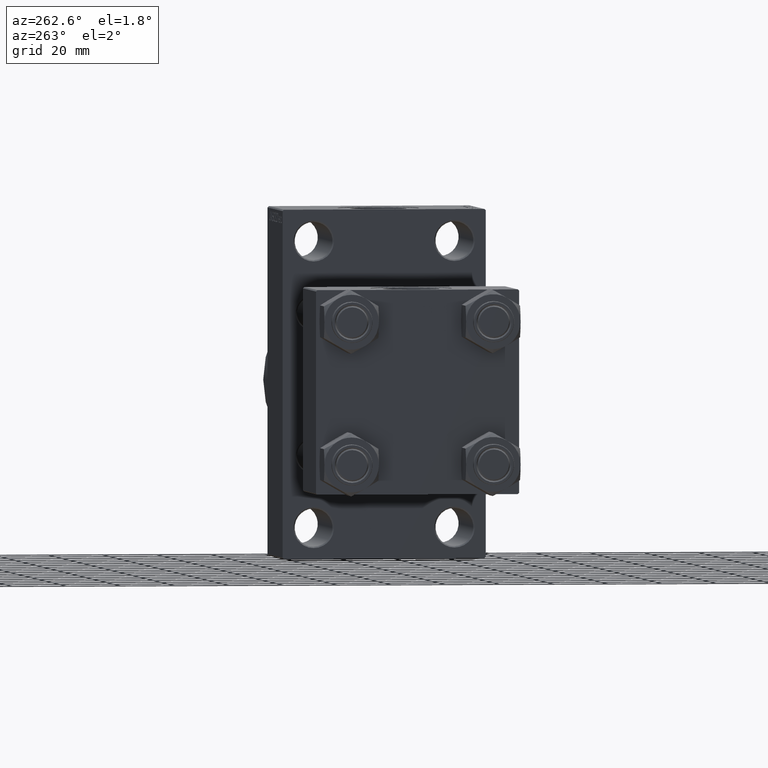
[diagram: clean part render]
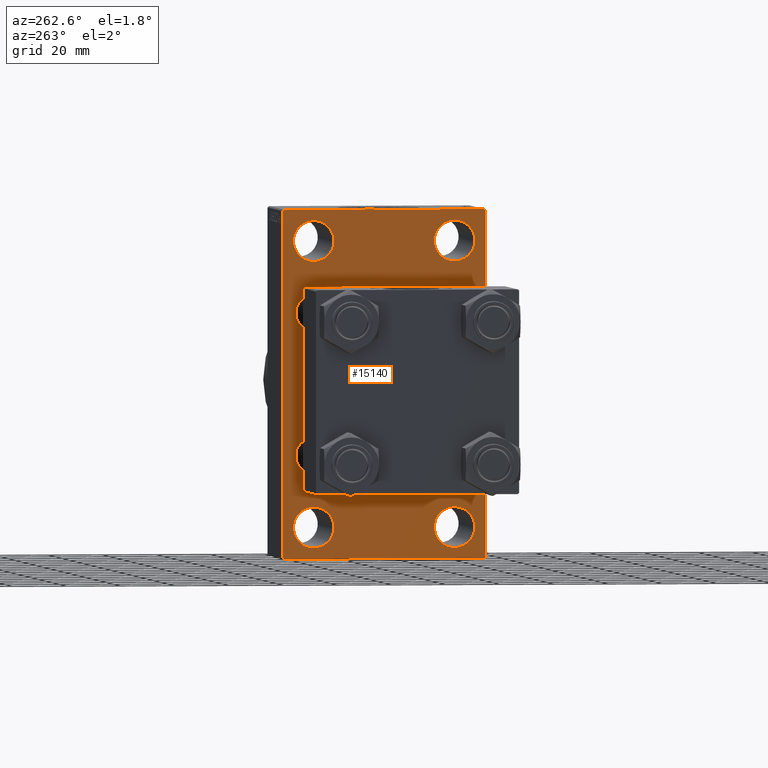
[diagram: same view with one face highlighted and labeled with its STEP entity id]
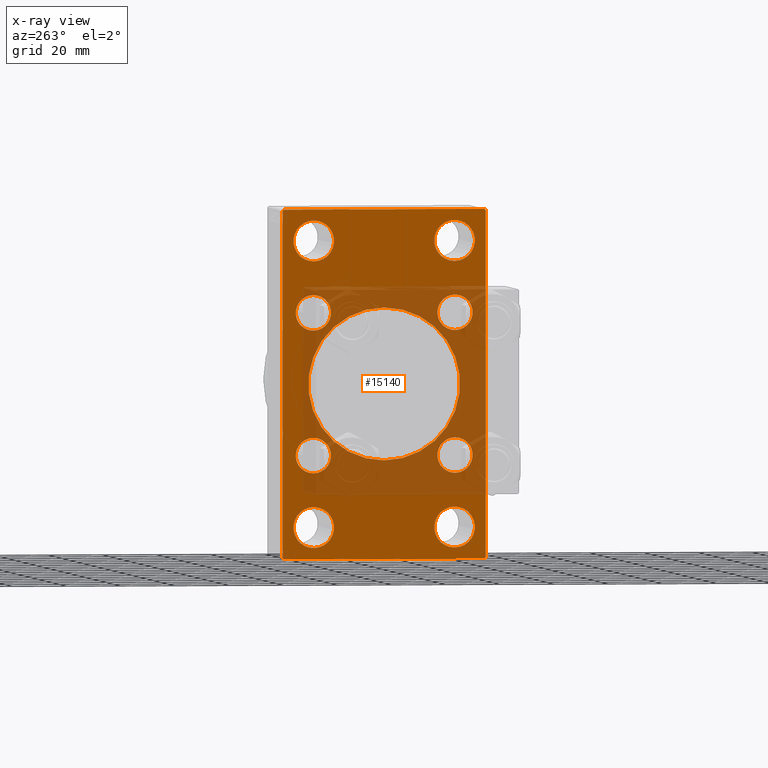
[diagram: x-ray of the same camera — body ghosted, the highlighted face saturated]
A machine part, auxiliary view. The second image highlights one B-rep face of the part: STEP entity #15140.
The next image is the same camera in x-ray: the body ghosted, the highlighted face saturated — about 37% of this face is hidden behind the body in this view.
In plain terms, the highlighted planar face has unit normal (-1, 0, 0).
Its self-contained STEP definition (entity closure, byte-faithful):
#405 = CIRCLE ( 'NONE', #30410, 7.499999999999978684 ) ;
#412 = CARTESIAN_POINT ( 'NONE',  ( 95.00000000000000000, -26.14999999999999147, 32.65000000000001990 ) ) ;
#656 = LINE ( 'NONE', #37533, #44914 ) ;
#804 = ORIENTED_EDGE ( 'NONE', *, *, #34906, .T. ) ;
#851 = AXIS2_PLACEMENT_3D ( 'NONE', #28614, #29332, #17283 ) ;
#1414 = CARTESIAN_POINT ( 'NONE',  ( 95.00000000000000000, 26.00000000000000000, -59.99999999999997158 ) ) ;
#1708 = DIRECTION ( 'NONE',  ( 0.000000000000000000, 0.000000000000000000, 1.000000000000000000 ) ) ;
#1778 = AXIS2_PLACEMENT_3D ( 'NONE', #2606, #39718, #20689 ) ;
#1925 = ORIENTED_EDGE ( 'NONE', *, *, #25820, .T. ) ;
#2372 = VERTEX_POINT ( 'NONE', #42516 ) ;
#2606 = CARTESIAN_POINT ( 'NONE',  ( 95.00000000000000000, 26.00000000000000000, -52.49999999999999289 ) ) ;
#2651 = LINE ( 'NONE', #13960, #25142 ) ;
#2870 = ORIENTED_EDGE ( 'NONE', *, *, #42293, .T. ) ;
#2890 = DIRECTION ( 'NONE',  ( 0.000000000000000000, 0.000000000000000000, -1.000000000000000000 ) ) ;
#3134 = ORIENTED_EDGE ( 'NONE', *, *, #23340, .T. ) ;
#3282 = EDGE_LOOP ( 'NONE', ( #33728, #2870 ) ) ;
#3340 = AXIS2_PLACEMENT_3D ( 'NONE', #6244, #38313, #45536 ) ;
#3359 = CARTESIAN_POINT ( 'NONE',  ( 95.00000000000000000, 50.49999999999894840, 50.50000000000176215 ) ) ;
#3522 = EDGE_CURVE ( 'NONE', #2372, #36723, #26153, .T. ) ;
#3563 = EDGE_CURVE ( 'NONE', #36723, #2372, #20786, .T. ) ;
#4019 = CARTESIAN_POINT ( 'NONE',  ( 95.00000000000000000, 26.00000000000000000, 52.49999999999999289 ) ) ;
#4088 = DIRECTION ( 'NONE',  ( 1.000000000000000000, -0.000000000000000000, 0.000000000000000000 ) ) ;
#4905 = CARTESIAN_POINT ( 'NONE',  ( 95.00000000000000000, -25.99999999999999645, -45.00000000000001421 ) ) ;
#4916 = EDGE_CURVE ( 'NONE', #9175, #9231, #31248, .T. ) ;
#4999 = CIRCLE ( 'NONE', #28067, 6.500000000000008882 ) ;
#5218 = DIRECTION ( 'NONE',  ( 1.000000000000000000, -0.000000000000000000, 0.000000000000000000 ) ) ;
#5431 = ORIENTED_EDGE ( 'NONE', *, *, #16821, .T. ) ;
#5591 = CIRCLE ( 'NONE', #7133, 6.500000000000008882 ) ;
#5705 = CARTESIAN_POINT ( 'NONE',  ( 95.00000000000000000, 50.49999999999948841, -50.50000000000088107 ) ) ;
#6103 = ORIENTED_EDGE ( 'NONE', *, *, #22804, .T. ) ;
#6244 = CARTESIAN_POINT ( 'NONE',  ( 95.00000000000000000, 0.000000000000000000, 0.000000000000000000 ) ) ;
#6462 = CARTESIAN_POINT ( 'NONE',  ( 95.00000000000000000, -26.14999999999999147, 19.65000000000000213 ) ) ;
#6692 = VERTEX_POINT ( 'NONE', #18821 ) ;
#6860 = CARTESIAN_POINT ( 'NONE',  ( 95.00000000000000000, -26.14999999999999147, -32.65000000000001990 ) ) ;
#7133 = AXIS2_PLACEMENT_3D ( 'NONE', #40946, #15881, #30589 ) ;
#7184 = DIRECTION ( 'NONE',  ( 1.000000000000000000, 0.000000000000000000, 0.000000000000000000 ) ) ;
#7638 = EDGE_CURVE ( 'NONE', #29121, #31721, #14440, .T. ) ;
#7778 = CARTESIAN_POINT ( 'NONE',  ( 95.00000000000000000, -25.99999999999999645, 59.99999999999997868 ) ) ;
#7803 = ORIENTED_EDGE ( 'NONE', *, *, #18781, .T. ) ;
#7912 = AXIS2_PLACEMENT_3D ( 'NONE', #19076, #26785, #30156 ) ;
#8091 = EDGE_LOOP ( 'NONE', ( #40021, #5431, #20078, #45059, #29892, #35933, #804, #14611 ) ) ;
#8761 = ORIENTED_EDGE ( 'NONE', *, *, #32022, .T. ) ;
#8770 = VERTEX_POINT ( 'NONE', #6462 ) ;
#8855 = DIRECTION ( 'NONE',  ( 1.000000000000000000, -0.000000000000000000, 0.000000000000000000 ) ) ;
#8913 = FACE_BOUND ( 'NONE', #11355, .T. ) ;
#8923 = DIRECTION ( 'NONE',  ( 1.000000000000000000, -0.000000000000000000, 0.000000000000000000 ) ) ;
#9070 = CARTESIAN_POINT ( 'NONE',  ( 95.00000000000000000, -37.49999999999999289, 63.49999999999994316 ) ) ;
#9175 = VERTEX_POINT ( 'NONE', #38003 ) ;
#9231 = VERTEX_POINT ( 'NONE', #26911 ) ;
#9410 = VERTEX_POINT ( 'NONE', #36285 ) ;
#9610 = FACE_BOUND ( 'NONE', #34910, .T. ) ;
#9652 = CARTESIAN_POINT ( 'NONE',  ( 95.00000000000000000, 37.49999999999999289, -64.00000000000000000 ) ) ;
#9962 = EDGE_LOOP ( 'NONE', ( #6103, #34217 ) ) ;
#10011 = AXIS2_PLACEMENT_3D ( 'NONE', #41178, #4088, #19253 ) ;
#10085 = EDGE_CURVE ( 'NONE', #26110, #15687, #36271, .T. ) ;
#10392 = CIRCLE ( 'NONE', #31950, 28.00000000000000000 ) ;
#10416 = CIRCLE ( 'NONE', #20431, 6.500000000000008882 ) ;
#10440 = EDGE_LOOP ( 'NONE', ( #29159, #3134 ) ) ;
#10905 = CIRCLE ( 'NONE', #32474, 6.500000000000008882 ) ;
#11355 = EDGE_LOOP ( 'NONE', ( #47068, #38331 ) ) ;
#11754 = DIRECTION ( 'NONE',  ( 1.000000000000000000, -0.000000000000000000, 0.000000000000000000 ) ) ;
#11781 = CARTESIAN_POINT ( 'NONE',  ( 95.00000000000000000, -25.99999999999999645, 52.50000000000000000 ) ) ;
#11892 = LINE ( 'NONE', #41049, #22468 ) ;
#11977 = EDGE_CURVE ( 'NONE', #21008, #33359, #11892, .T. ) ;
#12103 = CARTESIAN_POINT ( 'NONE',  ( 95.00000000000000000, 26.14999999999999858, 19.64999999999999147 ) ) ;
#12248 = CARTESIAN_POINT ( 'NONE',  ( 95.00000000000000000, -26.14999999999999147, 26.15000000000000924 ) ) ;
#12509 = CARTESIAN_POINT ( 'NONE',  ( 95.00000000000000000, 26.14999999999999858, -19.64999999999999503 ) ) ;
#12511 = FACE_BOUND ( 'NONE', #36218, .T. ) ;
#12650 = CARTESIAN_POINT ( 'NONE',  ( 95.00000000000000000, -26.14999999999999147, -26.15000000000000924 ) ) ;
#13207 = FACE_BOUND ( 'NONE', #14278, .T. ) ;
#13260 = VECTOR ( 'NONE', #20030, 1000.000000000000000 ) ;
#13398 = EDGE_CURVE ( 'NONE', #42388, #33142, #5591, .T. ) ;
#13595 = DIRECTION ( 'NONE',  ( 0.000000000000000000, 0.000000000000000000, -1.000000000000000000 ) ) ;
#13781 = VERTEX_POINT ( 'NONE', #412 ) ;
#13953 = CIRCLE ( 'NONE', #851, 7.499999999999978684 ) ;
#13960 = CARTESIAN_POINT ( 'NONE',  ( 95.00000000000000000, -37.49999999999999289, 63.99999999999997158 ) ) ;
#14278 = EDGE_LOOP ( 'NONE', ( #41500, #1925 ) ) ;
#14440 = LINE ( 'NONE', #3359, #43967 ) ;
#14611 = ORIENTED_EDGE ( 'NONE', *, *, #4916, .T. ) ;
#14620 = CARTESIAN_POINT ( 'NONE',  ( 95.00000000000000000, -37.49999999999999289, -63.49999999999997158 ) ) ;
#15140 = ADVANCED_FACE ( 'NONE', ( #8913, #34688, #13207, #35400, #20226, #9610, #23609, #12511, #31537, #34927 ), #17066, .T. ) ;
#15391 = DIRECTION ( 'NONE',  ( 1.000000000000000000, -0.000000000000000000, 0.000000000000000000 ) ) ;
#15564 = CARTESIAN_POINT ( 'NONE',  ( 95.00000000000000000, 36.99999999999997158, 63.99999999999998579 ) ) ;
#15637 = CIRCLE ( 'NONE', #1778, 7.499999999999978684 ) ;
#15687 = VERTEX_POINT ( 'NONE', #26387 ) ;
#15814 = ORIENTED_EDGE ( 'NONE', *, *, #32656, .T. ) ;
#15877 = VECTOR ( 'NONE', #25775, 1000.000000000000000 ) ;
#15881 = DIRECTION ( 'NONE',  ( 1.000000000000000000, -0.000000000000000000, 0.000000000000000000 ) ) ;
#16135 = CARTESIAN_POINT ( 'NONE',  ( 95.00000000000000000, 26.14999999999999858, -26.15000000000000213 ) ) ;
#16228 = CARTESIAN_POINT ( 'NONE',  ( 95.00000000000000000, -26.14999999999999147, -19.65000000000000213 ) ) ;
#16503 = DIRECTION ( 'NONE',  ( 1.000000000000000000, -0.000000000000000000, 0.000000000000000000 ) ) ;
#16821 = EDGE_CURVE ( 'NONE', #33454, #28981, #34764, .T. ) ;
#17066 = PLANE ( 'NONE',  #3340 ) ;
#17283 = DIRECTION ( 'NONE',  ( 0.000000000000000000, 0.000000000000000000, 1.000000000000000000 ) ) ;
#17397 = CIRCLE ( 'NONE', #38968, 7.499999999999978684 ) ;
#17460 = CARTESIAN_POINT ( 'NONE',  ( 95.00000000000000000, -2.602085213965210642E-15, 28.00000000000000000 ) ) ;
#17627 = DIRECTION ( 'NONE',  ( 0.000000000000000000, 0.000000000000000000, 1.000000000000000000 ) ) ;
#18230 = CIRCLE ( 'NONE', #35918, 28.00000000000000000 ) ;
#18781 = EDGE_CURVE ( 'NONE', #33142, #42388, #4999, .T. ) ;
#18821 = CARTESIAN_POINT ( 'NONE',  ( 95.00000000000000000, 26.14999999999999858, 32.65000000000001990 ) ) ;
#19076 = CARTESIAN_POINT ( 'NONE',  ( 95.00000000000000000, 26.14999999999999858, 26.15000000000000213 ) ) ;
#19253 = DIRECTION ( 'NONE',  ( 0.000000000000000000, 0.000000000000000000, 1.000000000000000000 ) ) ;
#19850 = AXIS2_PLACEMENT_3D ( 'NONE', #16135, #8923, #23126 ) ;
#20030 = DIRECTION ( 'NONE',  ( 0.000000000000000000, -1.000000000000000000, -1.850371707708594563E-16 ) ) ;
#20078 = ORIENTED_EDGE ( 'NONE', *, *, #27451, .F. ) ;
#20194 = CIRCLE ( 'NONE', #30199, 6.500000000000008882 ) ;
#20226 = FACE_BOUND ( 'NONE', #3282, .T. ) ;
#20297 = DIRECTION ( 'NONE',  ( 0.000000000000000000, -0.7071067811865574537, 0.7071067811865376918 ) ) ;
#20431 = AXIS2_PLACEMENT_3D ( 'NONE', #35472, #46313, #17627 ) ;
#20689 = DIRECTION ( 'NONE',  ( 0.000000000000000000, 0.000000000000000000, 1.000000000000000000 ) ) ;
#20786 = CIRCLE ( 'NONE', #10011, 7.499999999999978684 ) ;
#21008 = VERTEX_POINT ( 'NONE', #9070 ) ;
#22395 = CARTESIAN_POINT ( 'NONE',  ( 95.00000000000000000, 37.50000000000000000, 63.99999999999998579 ) ) ;
#22468 = VECTOR ( 'NONE', #30699, 1000.000000000000000 ) ;
#22804 = EDGE_CURVE ( 'NONE', #27133, #35695, #10392, .T. ) ;
#23058 = CARTESIAN_POINT ( 'NONE',  ( 95.00000000000000000, -25.99999999999999645, -52.49999999999999289 ) ) ;
#23126 = DIRECTION ( 'NONE',  ( 0.000000000000000000, 0.000000000000000000, 1.000000000000000000 ) ) ;
#23340 = EDGE_CURVE ( 'NONE', #15687, #26110, #405, .T. ) ;
#23609 = FACE_BOUND ( 'NONE', #24104, .T. ) ;
#23672 = VERTEX_POINT ( 'NONE', #1414 ) ;
#24104 = EDGE_LOOP ( 'NONE', ( #42978, #8761 ) ) ;
#25028 = VERTEX_POINT ( 'NONE', #12103 ) ;
#25142 = VECTOR ( 'NONE', #2890, 1000.000000000000000 ) ;
#25572 = CARTESIAN_POINT ( 'NONE',  ( 95.00000000000000000, 8.269258236473776482E-16, -28.00000000000000000 ) ) ;
#25775 = DIRECTION ( 'NONE',  ( 0.000000000000000000, -1.000000000000000000, -1.850371707708594563E-16 ) ) ;
#25783 = DIRECTION ( 'NONE',  ( 0.000000000000000000, 0.000000000000000000, 1.000000000000000000 ) ) ;
#25820 = EDGE_CURVE ( 'NONE', #23672, #35989, #36647, .T. ) ;
#26110 = VERTEX_POINT ( 'NONE', #4905 ) ;
#26153 = CIRCLE ( 'NONE', #34618, 7.499999999999978684 ) ;
#26387 = CARTESIAN_POINT ( 'NONE',  ( 95.00000000000000000, -25.99999999999999645, -59.99999999999997158 ) ) ;
#26464 = DIRECTION ( 'NONE',  ( 0.000000000000000000, 0.000000000000000000, 1.000000000000000000 ) ) ;
#26785 = DIRECTION ( 'NONE',  ( 1.000000000000000000, -0.000000000000000000, 0.000000000000000000 ) ) ;
#26911 = CARTESIAN_POINT ( 'NONE',  ( 95.00000000000000000, 36.99999999999999289, -64.00000000000000000 ) ) ;
#27133 = VERTEX_POINT ( 'NONE', #17460 ) ;
#27451 = EDGE_CURVE ( 'NONE', #21008, #28981, #2651, .T. ) ;
#27505 = CARTESIAN_POINT ( 'NONE',  ( 95.00000000000000000, -25.99999999999999645, -52.49999999999999289 ) ) ;
#27819 = DIRECTION ( 'NONE',  ( 1.000000000000000000, 0.000000000000000000, 0.000000000000000000 ) ) ;
#28067 = AXIS2_PLACEMENT_3D ( 'NONE', #12650, #16503, #31218 ) ;
#28614 = CARTESIAN_POINT ( 'NONE',  ( 95.00000000000000000, 26.00000000000000000, 52.49999999999999289 ) ) ;
#28981 = VERTEX_POINT ( 'NONE', #14620 ) ;
#29016 = EDGE_CURVE ( 'NONE', #9410, #45406, #13953, .T. ) ;
#29121 = VERTEX_POINT ( 'NONE', #15564 ) ;
#29159 = ORIENTED_EDGE ( 'NONE', *, *, #10085, .T. ) ;
#29332 = DIRECTION ( 'NONE',  ( 1.000000000000000000, -0.000000000000000000, 0.000000000000000000 ) ) ;
#29391 = LINE ( 'NONE', #22395, #15877 ) ;
#29697 = CARTESIAN_POINT ( 'NONE',  ( 95.00000000000000000, -36.99999999999995737, 63.99999999999997158 ) ) ;
#29753 = CARTESIAN_POINT ( 'NONE',  ( 95.00000000000000000, 26.14999999999999858, -32.65000000000001279 ) ) ;
#29892 = ORIENTED_EDGE ( 'NONE', *, *, #44724, .F. ) ;
#30156 = DIRECTION ( 'NONE',  ( 0.000000000000000000, 0.000000000000000000, 1.000000000000000000 ) ) ;
#30199 = AXIS2_PLACEMENT_3D ( 'NONE', #34842, #5218, #34120 ) ;
#30331 = DIRECTION ( 'NONE',  ( 0.000000000000000000, 0.000000000000000000, 1.000000000000000000 ) ) ;
#30410 = AXIS2_PLACEMENT_3D ( 'NONE', #27505, #45342, #1708 ) ;
#30442 = EDGE_CURVE ( 'NONE', #25028, #6692, #10905, .T. ) ;
#30512 = DIRECTION ( 'NONE',  ( 0.000000000000000000, 0.000000000000000000, 1.000000000000000000 ) ) ;
#30589 = DIRECTION ( 'NONE',  ( 0.000000000000000000, 0.000000000000000000, 1.000000000000000000 ) ) ;
#30699 = DIRECTION ( 'NONE',  ( -0.000000000000000000, 0.7071067811865524577, 0.7071067811865426878 ) ) ;
#30813 = ORIENTED_EDGE ( 'NONE', *, *, #29016, .T. ) ;
#30912 = CARTESIAN_POINT ( 'NONE',  ( 95.00000000000000000, -50.49999999999945999, -50.50000000000086686 ) ) ;
#31218 = DIRECTION ( 'NONE',  ( 0.000000000000000000, 0.000000000000000000, 1.000000000000000000 ) ) ;
#31248 = LINE ( 'NONE', #5705, #35445 ) ;
#31537 = FACE_BOUND ( 'NONE', #9962, .T. ) ;
#31630 = ORIENTED_EDGE ( 'NONE', *, *, #13398, .T. ) ;
#31721 = VERTEX_POINT ( 'NONE', #43358 ) ;
#31950 = AXIS2_PLACEMENT_3D ( 'NONE', #40660, #7184, #44743 ) ;
#32022 = EDGE_CURVE ( 'NONE', #45859, #46447, #20194, .T. ) ;
#32130 = CARTESIAN_POINT ( 'NONE',  ( 95.00000000000000000, 26.14999999999999858, 26.15000000000000213 ) ) ;
#32474 = AXIS2_PLACEMENT_3D ( 'NONE', #32130, #46829, #39837 ) ;
#32530 = EDGE_LOOP ( 'NONE', ( #30813, #36868 ) ) ;
#32656 = EDGE_CURVE ( 'NONE', #6692, #25028, #36400, .T. ) ;
#32878 = EDGE_CURVE ( 'NONE', #9231, #33454, #35677, .T. ) ;
#33142 = VERTEX_POINT ( 'NONE', #16228 ) ;
#33359 = VERTEX_POINT ( 'NONE', #29697 ) ;
#33454 = VERTEX_POINT ( 'NONE', #41722 ) ;
#33728 = ORIENTED_EDGE ( 'NONE', *, *, #44898, .T. ) ;
#33953 = AXIS2_PLACEMENT_3D ( 'NONE', #23058, #8855, #38014 ) ;
#34025 = EDGE_CURVE ( 'NONE', #35989, #23672, #15637, .T. ) ;
#34120 = DIRECTION ( 'NONE',  ( 0.000000000000000000, 0.000000000000000000, 1.000000000000000000 ) ) ;
#34217 = ORIENTED_EDGE ( 'NONE', *, *, #45185, .T. ) ;
#34363 = CIRCLE ( 'NONE', #40479, 6.500000000000008882 ) ;
#34418 = CARTESIAN_POINT ( 'NONE',  ( 95.00000000000000000, 26.00000000000000000, -52.49999999999999289 ) ) ;
#34618 = AXIS2_PLACEMENT_3D ( 'NONE', #11781, #15391, #25783 ) ;
#34688 = FACE_BOUND ( 'NONE', #10440, .T. ) ;
#34764 = LINE ( 'NONE', #30912, #36471 ) ;
#34842 = CARTESIAN_POINT ( 'NONE',  ( 95.00000000000000000, 26.14999999999999858, -26.15000000000000213 ) ) ;
#34906 = EDGE_CURVE ( 'NONE', #31721, #9175, #656, .T. ) ;
#34910 = EDGE_LOOP ( 'NONE', ( #15814, #43788 ) ) ;
#34927 = FACE_OUTER_BOUND ( 'NONE', #8091, .T. ) ;
#35400 = FACE_BOUND ( 'NONE', #32530, .T. ) ;
#35445 = VECTOR ( 'NONE', #45471, 1000.000000000000000 ) ;
#35472 = CARTESIAN_POINT ( 'NONE',  ( 95.00000000000000000, -26.14999999999999147, 26.15000000000000924 ) ) ;
#35677 = LINE ( 'NONE', #9652, #13260 ) ;
#35695 = VERTEX_POINT ( 'NONE', #25572 ) ;
#35918 = AXIS2_PLACEMENT_3D ( 'NONE', #46621, #27819, #13595 ) ;
#35933 = ORIENTED_EDGE ( 'NONE', *, *, #7638, .T. ) ;
#35989 = VERTEX_POINT ( 'NONE', #41932 ) ;
#36218 = EDGE_LOOP ( 'NONE', ( #7803, #31630 ) ) ;
#36271 = CIRCLE ( 'NONE', #33953, 7.499999999999978684 ) ;
#36285 = CARTESIAN_POINT ( 'NONE',  ( 95.00000000000000000, 26.00000000000000000, 59.99999999999997158 ) ) ;
#36381 = DIRECTION ( 'NONE',  ( 0.000000000000000000, 0.7071067811865672237, -0.7071067811865279218 ) ) ;
#36400 = CIRCLE ( 'NONE', #7912, 6.500000000000008882 ) ;
#36471 = VECTOR ( 'NONE', #20297, 999.9999999999998863 ) ;
#36647 = CIRCLE ( 'NONE', #38194, 7.499999999999978684 ) ;
#36723 = VERTEX_POINT ( 'NONE', #7778 ) ;
#36812 = CARTESIAN_POINT ( 'NONE',  ( 95.00000000000000000, 26.00000000000000000, 45.00000000000001421 ) ) ;
#36868 = ORIENTED_EDGE ( 'NONE', *, *, #44306, .T. ) ;
#37533 = CARTESIAN_POINT ( 'NONE',  ( 95.00000000000000000, 37.50000000000000000, 63.99999999999998579 ) ) ;
#37800 = DIRECTION ( 'NONE',  ( 1.000000000000000000, -0.000000000000000000, 0.000000000000000000 ) ) ;
#38003 = CARTESIAN_POINT ( 'NONE',  ( 95.00000000000000000, 37.49999999999999289, -63.50000000000001421 ) ) ;
#38014 = DIRECTION ( 'NONE',  ( 0.000000000000000000, 0.000000000000000000, 1.000000000000000000 ) ) ;
#38194 = AXIS2_PLACEMENT_3D ( 'NONE', #34418, #11754, #26464 ) ;
#38313 = DIRECTION ( 'NONE',  ( -1.000000000000000000, 0.000000000000000000, -0.000000000000000000 ) ) ;
#38331 = ORIENTED_EDGE ( 'NONE', *, *, #3522, .T. ) ;
#38968 = AXIS2_PLACEMENT_3D ( 'NONE', #4019, #41104, #30512 ) ;
#39718 = DIRECTION ( 'NONE',  ( 1.000000000000000000, -0.000000000000000000, 0.000000000000000000 ) ) ;
#39837 = DIRECTION ( 'NONE',  ( 0.000000000000000000, 0.000000000000000000, 1.000000000000000000 ) ) ;
#40021 = ORIENTED_EDGE ( 'NONE', *, *, #32878, .T. ) ;
#40479 = AXIS2_PLACEMENT_3D ( 'NONE', #12248, #37800, #30331 ) ;
#40660 = CARTESIAN_POINT ( 'NONE',  ( 95.00000000000000000, -2.602085213965210642E-15, 0.000000000000000000 ) ) ;
#40946 = CARTESIAN_POINT ( 'NONE',  ( 95.00000000000000000, -26.14999999999999147, -26.15000000000000924 ) ) ;
#41049 = CARTESIAN_POINT ( 'NONE',  ( 95.00000000000000000, -50.49999999999970868, 50.50000000000040501 ) ) ;
#41104 = DIRECTION ( 'NONE',  ( 1.000000000000000000, -0.000000000000000000, 0.000000000000000000 ) ) ;
#41178 = CARTESIAN_POINT ( 'NONE',  ( 95.00000000000000000, -25.99999999999999645, 52.50000000000000000 ) ) ;
#41500 = ORIENTED_EDGE ( 'NONE', *, *, #34025, .T. ) ;
#41722 = CARTESIAN_POINT ( 'NONE',  ( 95.00000000000000000, -36.99999999999993605, -64.00000000000001421 ) ) ;
#41932 = CARTESIAN_POINT ( 'NONE',  ( 95.00000000000000000, 26.00000000000000000, -45.00000000000001421 ) ) ;
#42293 = EDGE_CURVE ( 'NONE', #8770, #13781, #10416, .T. ) ;
#42388 = VERTEX_POINT ( 'NONE', #6860 ) ;
#42516 = CARTESIAN_POINT ( 'NONE',  ( 95.00000000000000000, -25.99999999999999645, 45.00000000000002132 ) ) ;
#42978 = ORIENTED_EDGE ( 'NONE', *, *, #47316, .T. ) ;
#43358 = CARTESIAN_POINT ( 'NONE',  ( 95.00000000000000000, 37.50000000000000000, 63.49999999999998579 ) ) ;
#43788 = ORIENTED_EDGE ( 'NONE', *, *, #30442, .T. ) ;
#43967 = VECTOR ( 'NONE', #36381, 1000.000000000000000 ) ;
#44306 = EDGE_CURVE ( 'NONE', #45406, #9410, #17397, .T. ) ;
#44724 = EDGE_CURVE ( 'NONE', #29121, #33359, #29391, .T. ) ;
#44743 = DIRECTION ( 'NONE',  ( 0.000000000000000000, 0.000000000000000000, -1.000000000000000000 ) ) ;
#44898 = EDGE_CURVE ( 'NONE', #13781, #8770, #34363, .T. ) ;
#44914 = VECTOR ( 'NONE', #47259, 1000.000000000000000 ) ;
#45059 = ORIENTED_EDGE ( 'NONE', *, *, #11977, .T. ) ;
#45185 = EDGE_CURVE ( 'NONE', #35695, #27133, #18230, .T. ) ;
#45342 = DIRECTION ( 'NONE',  ( 1.000000000000000000, -0.000000000000000000, 0.000000000000000000 ) ) ;
#45406 = VERTEX_POINT ( 'NONE', #36812 ) ;
#45471 = DIRECTION ( 'NONE',  ( -0.000000000000000000, -0.7071067811865573427, -0.7071067811865378028 ) ) ;
#45536 = DIRECTION ( 'NONE',  ( -0.000000000000000000, 0.000000000000000000, 1.000000000000000000 ) ) ;
#45859 = VERTEX_POINT ( 'NONE', #29753 ) ;
#46313 = DIRECTION ( 'NONE',  ( 1.000000000000000000, -0.000000000000000000, 0.000000000000000000 ) ) ;
#46447 = VERTEX_POINT ( 'NONE', #12509 ) ;
#46621 = CARTESIAN_POINT ( 'NONE',  ( 95.00000000000000000, -2.602085213965210642E-15, 0.000000000000000000 ) ) ;
#46778 = CIRCLE ( 'NONE', #19850, 6.500000000000008882 ) ;
#46829 = DIRECTION ( 'NONE',  ( 1.000000000000000000, -0.000000000000000000, 0.000000000000000000 ) ) ;
#47068 = ORIENTED_EDGE ( 'NONE', *, *, #3563, .T. ) ;
#47259 = DIRECTION ( 'NONE',  ( 0.000000000000000000, -5.421010862427522170E-17, -1.000000000000000000 ) ) ;
#47316 = EDGE_CURVE ( 'NONE', #46447, #45859, #46778, .T. ) ;